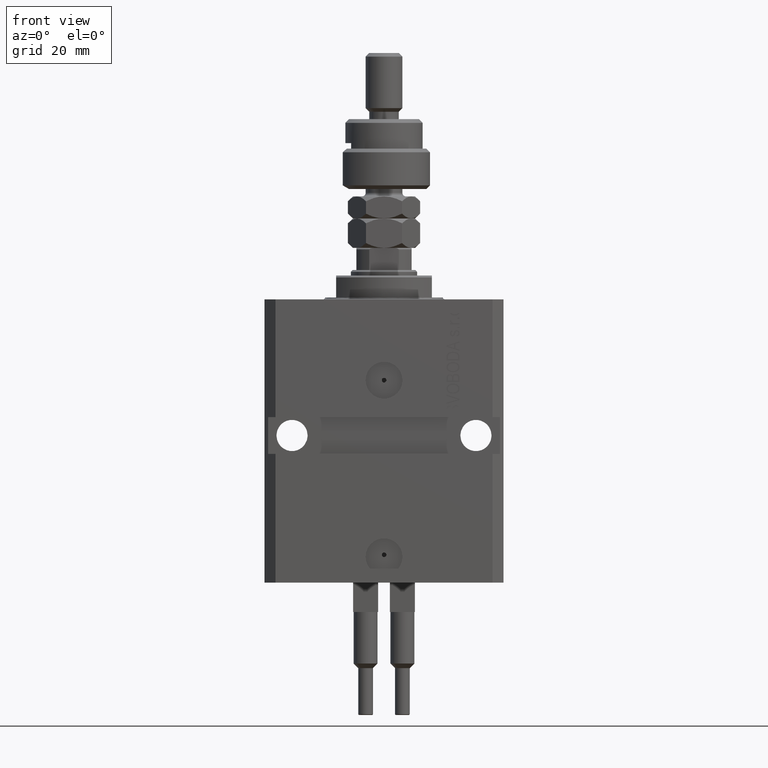
[diagram: clean part render]
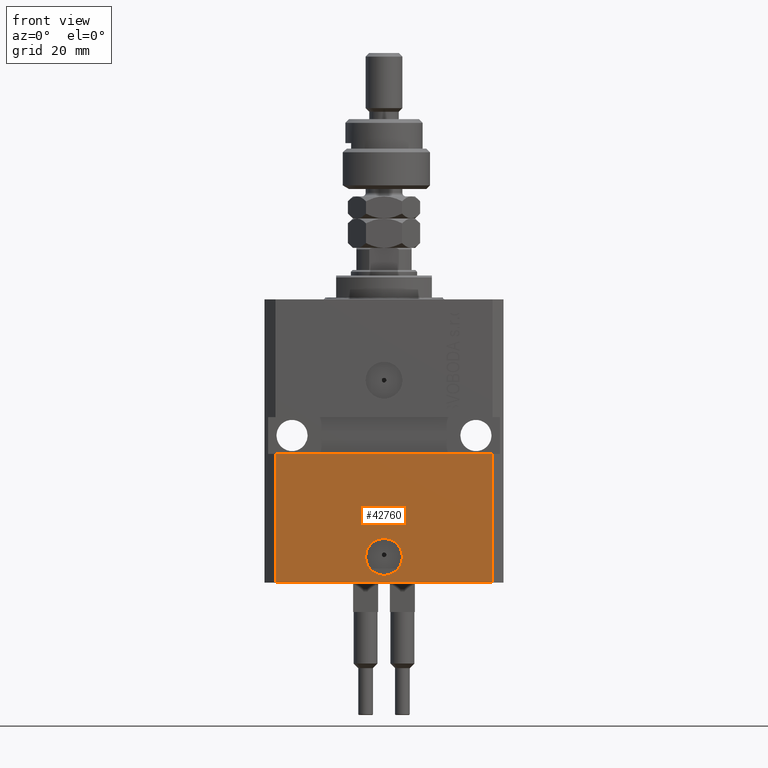
[diagram: same view with one face highlighted and labeled with its STEP entity id]
A machine part, front view. The second image highlights one B-rep face of the part: STEP entity #42760.
In plain terms, the highlighted planar face has unit normal (0, -1, 0).
Its self-contained STEP definition (entity closure, byte-faithful):
#1486 = VECTOR ( 'NONE', #50811, 1000.000000000000000 ) ;
#1521 = DIRECTION ( 'NONE',  ( 1.176083712526788232E-16, -1.000000000000000000, 0.000000000000000000 ) ) ;
#2537 = CARTESIAN_POINT ( 'NONE',  ( -29.49999999999650413, -22.49999999999949907, -77.00000000000000000 ) ) ;
#4619 = FACE_BOUND ( 'NONE', #28982, .T. ) ;
#5590 = AXIS2_PLACEMENT_3D ( 'NONE', #40329, #1521, #40078 ) ;
#6038 = CARTESIAN_POINT ( 'NONE',  ( 5.000000000000007994, -22.49999999999949551, -69.99999999999998579 ) ) ;
#6515 = DIRECTION ( 'NONE',  ( 1.000000000000000000, 0.000000000000000000, 0.000000000000000000 ) ) ;
#6927 = VERTEX_POINT ( 'NONE', #29347 ) ;
#8169 = VERTEX_POINT ( 'NONE', #6038 ) ;
#9196 = ORIENTED_EDGE ( 'NONE', *, *, #50470, .F. ) ;
#10763 = CARTESIAN_POINT ( 'NONE',  ( 2.646188353185214061E-15, -22.49999999999949551, -69.99999999999998579 ) ) ;
#13138 = EDGE_CURVE ( 'NONE', #20468, #8169, #36073, .T. ) ;
#13228 = CARTESIAN_POINT ( 'NONE',  ( -29.49999999999650413, -22.49999999999949907, -77.00000000000000000 ) ) ;
#13798 = ORIENTED_EDGE ( 'NONE', *, *, #43747, .T. ) ;
#13899 = AXIS2_PLACEMENT_3D ( 'NONE', #41717, #37375, #6515 ) ;
#14077 = VECTOR ( 'NONE', #22343, 1000.000000000000000 ) ;
#14776 = CARTESIAN_POINT ( 'NONE',  ( -29.49999999999650413, -22.49999999999949907, -41.99999999999999289 ) ) ;
#17367 = LINE ( 'NONE', #13228, #44479 ) ;
#17732 = DIRECTION ( 'NONE',  ( 1.000000000000000000, 0.000000000000000000, 0.000000000000000000 ) ) ;
#18269 = CARTESIAN_POINT ( 'NONE',  ( 29.49999999999650413, -22.49999999999949196, -77.00000000000000000 ) ) ;
#19307 = VERTEX_POINT ( 'NONE', #14776 ) ;
#19368 = CARTESIAN_POINT ( 'NONE',  ( -5.000000000000002665, -22.49999999999949551, -69.99999999999998579 ) ) ;
#20468 = VERTEX_POINT ( 'NONE', #19368 ) ;
#21085 = FACE_OUTER_BOUND ( 'NONE', #40520, .T. ) ;
#21330 = ORIENTED_EDGE ( 'NONE', *, *, #34162, .F. ) ;
#22343 = DIRECTION ( 'NONE',  ( 0.000000000000000000, 0.000000000000000000, 1.000000000000000000 ) ) ;
#22481 = CARTESIAN_POINT ( 'NONE',  ( 29.49999999999650058, -22.49999999999949196, -41.99999999999998579 ) ) ;
#22999 = EDGE_CURVE ( 'NONE', #6927, #43589, #17367, .T. ) ;
#24933 = PLANE ( 'NONE',  #5590 ) ;
#25183 = LINE ( 'NONE', #29051, #45620 ) ;
#27924 = DIRECTION ( 'NONE',  ( 1.000000000000000000, 1.176083712526788232E-16, 0.000000000000000000 ) ) ;
#28982 = EDGE_LOOP ( 'NONE', ( #37511, #29296 ) ) ;
#29051 = CARTESIAN_POINT ( 'NONE',  ( -32.49999999999650413, -22.49999999999949907, -41.99999999999999289 ) ) ;
#29296 = ORIENTED_EDGE ( 'NONE', *, *, #13138, .F. ) ;
#29347 = CARTESIAN_POINT ( 'NONE',  ( -29.49999999999650413, -22.49999999999949907, -77.00000000000000000 ) ) ;
#34162 = EDGE_CURVE ( 'NONE', #19307, #37459, #25183, .T. ) ;
#35255 = AXIS2_PLACEMENT_3D ( 'NONE', #10763, #42098, #17732 ) ;
#36073 = CIRCLE ( 'NONE', #13899, 5.000000000000005329 ) ;
#37375 = DIRECTION ( 'NONE',  ( 1.176083712526788232E-16, -1.000000000000000000, 0.000000000000000000 ) ) ;
#37459 = VERTEX_POINT ( 'NONE', #22481 ) ;
#37511 = ORIENTED_EDGE ( 'NONE', *, *, #45095, .F. ) ;
#37752 = LINE ( 'NONE', #2537, #14077 ) ;
#39342 = CIRCLE ( 'NONE', #35255, 5.000000000000005329 ) ;
#40078 = DIRECTION ( 'NONE',  ( 1.000000000000000000, 1.176083712526788232E-16, 0.000000000000000000 ) ) ;
#40329 = CARTESIAN_POINT ( 'NONE',  ( -29.49999999999650413, -22.49999999999949907, -77.00000000000000000 ) ) ;
#40520 = EDGE_LOOP ( 'NONE', ( #21330, #9196, #48177, #13798 ) ) ;
#41717 = CARTESIAN_POINT ( 'NONE',  ( 2.646188353185214061E-15, -22.49999999999949551, -69.99999999999998579 ) ) ;
#42098 = DIRECTION ( 'NONE',  ( 1.176083712526788232E-16, -1.000000000000000000, 0.000000000000000000 ) ) ;
#42760 = ADVANCED_FACE ( 'NONE', ( #4619, #21085 ), #24933, .T. ) ;
#43589 = VERTEX_POINT ( 'NONE', #18269 ) ;
#43747 = EDGE_CURVE ( 'NONE', #43589, #37459, #47476, .T. ) ;
#44479 = VECTOR ( 'NONE', #27924, 1000.000000000000000 ) ;
#45095 = EDGE_CURVE ( 'NONE', #8169, #20468, #39342, .T. ) ;
#45620 = VECTOR ( 'NONE', #48274, 1000.000000000000000 ) ;
#47476 = LINE ( 'NONE', #50556, #1486 ) ;
#48177 = ORIENTED_EDGE ( 'NONE', *, *, #22999, .T. ) ;
#48274 = DIRECTION ( 'NONE',  ( 1.000000000000000000, 1.067522139062765303E-16, 1.067522139062765303E-16 ) ) ;
#50470 = EDGE_CURVE ( 'NONE', #6927, #19307, #37752, .T. ) ;
#50556 = CARTESIAN_POINT ( 'NONE',  ( 29.49999999999650413, -22.49999999999949196, -77.00000000000000000 ) ) ;
#50811 = DIRECTION ( 'NONE',  ( 0.000000000000000000, 0.000000000000000000, 1.000000000000000000 ) ) ;